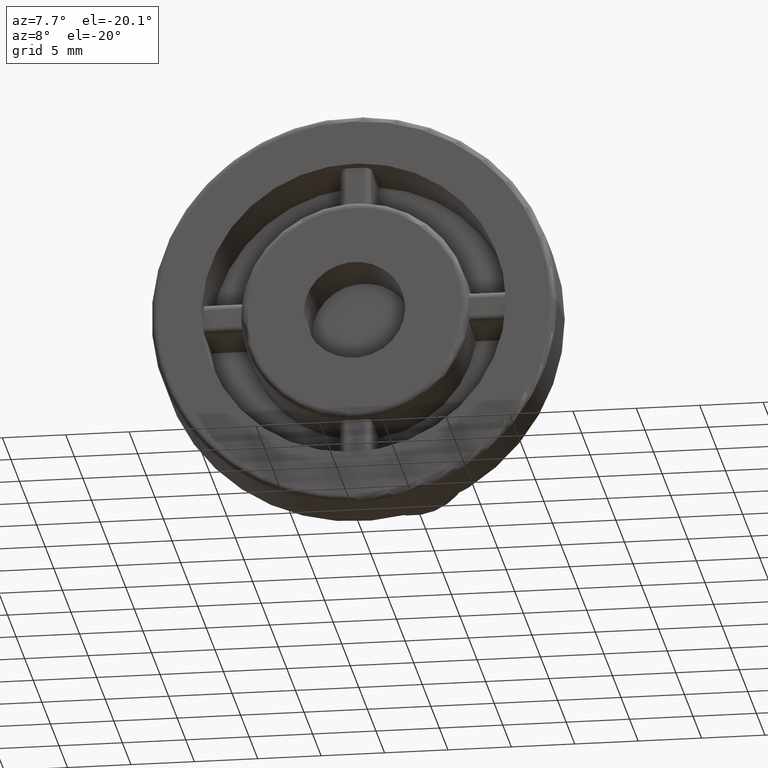
[diagram: clean part render]
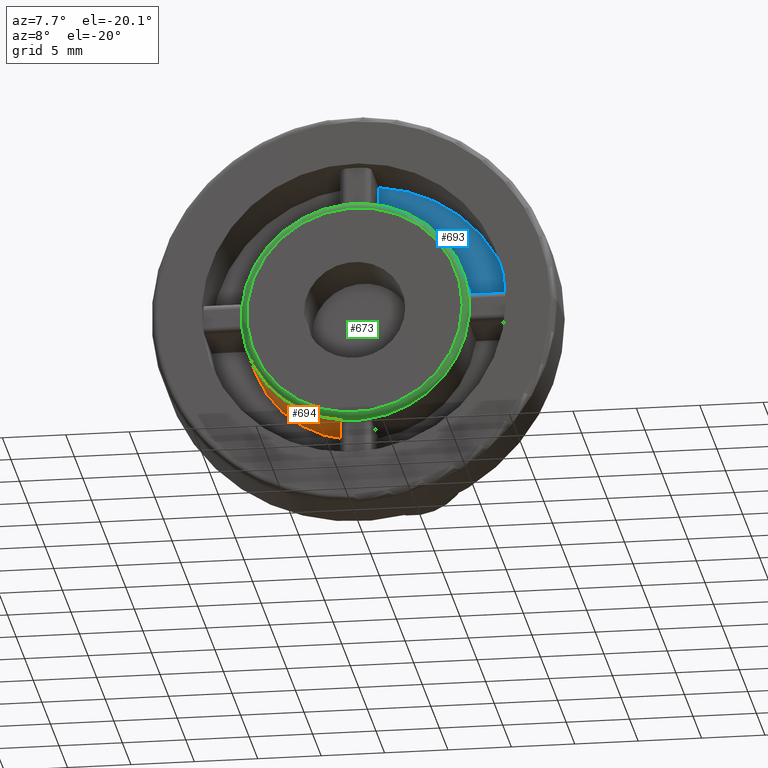
[diagram: same view with three faces highlighted in distinct colors, each labeled with its STEP entity id]
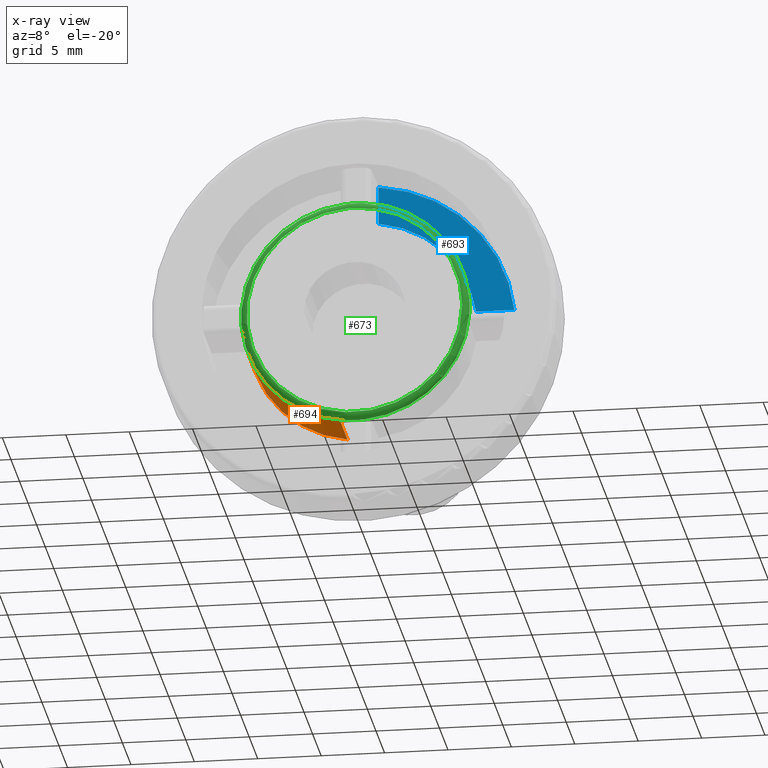
[diagram: x-ray of the same camera — body ghosted, the three highlighted faces saturated]
A machine part, auxiliary view with three faces highlighted in distinct colors.
The next image is the same camera in x-ray (body ghosted, the three faces saturated) — at least one of them is partly hidden behind the body in this view.
Their STEP definitions:

[orange] entity #694 — the highlighted cylindrical surface (partial cylindrical patch) has radius 9 mm, axis along (0, 1, 0).
#38=CIRCLE('',#728,9.);
#60=CIRCLE('',#768,9.);
#132=FACE_OUTER_BOUND('',#189,.T.);
#189=EDGE_LOOP('',(#594,#595,#596,#597,#598,#599));
#212=LINE('',#1059,#252);
#215=LINE('',#1089,#255);
#252=VECTOR('',#806,4.);
#255=VECTOR('',#813,4.);
#285=B_SPLINE_CURVE_WITH_KNOTS('',3,(#1030,#1031,#1032,#1033,#1034,#1035,
#1036,#1037,#1038,#1039),.UNSPECIFIED.,.F.,.F.,(4,2,2,2,4),(0.226359241888503,
0.245295656184821,0.264232070481139,0.283070817447833,0.301909564414528),
 .UNSPECIFIED.);
#287=B_SPLINE_CURVE_WITH_KNOTS('',3,(#1063,#1064,#1065,#1066,#1067,#1068,
#1069,#1070,#1071,#1072),.UNSPECIFIED.,.F.,.F.,(4,2,2,2,4),(0.,0.0188387469666945,
0.037677493933389,0.0566139082297067,0.0755503225260245),.UNSPECIFIED.);
#305=VERTEX_POINT('',#1028);
#306=VERTEX_POINT('',#1029);
#310=VERTEX_POINT('',#1057);
#311=VERTEX_POINT('',#1061);
#312=VERTEX_POINT('',#1062);
#315=VERTEX_POINT('',#1088);
#370=EDGE_CURVE('',#305,#306,#285,.F.);
#376=EDGE_CURVE('',#305,#310,#212,.T.);
#377=EDGE_CURVE('',#311,#312,#287,.T.);
#381=EDGE_CURVE('',#315,#311,#215,.T.);
#425=EDGE_CURVE('',#306,#312,#38,.T.);
#447=EDGE_CURVE('',#310,#315,#60,.T.);
#594=ORIENTED_EDGE('',*,*,#425,.F.);
#595=ORIENTED_EDGE('',*,*,#370,.F.);
#596=ORIENTED_EDGE('',*,*,#376,.T.);
#597=ORIENTED_EDGE('',*,*,#447,.T.);
#598=ORIENTED_EDGE('',*,*,#381,.T.);
#599=ORIENTED_EDGE('',*,*,#377,.T.);
#652=CYLINDRICAL_SURFACE('',#773,9.);
#694=ADVANCED_FACE('',(#132),#652,.T.);
#728=AXIS2_PLACEMENT_3D('',#1265,#875,#876);
#768=AXIS2_PLACEMENT_3D('',#1317,#955,#956);
#773=AXIS2_PLACEMENT_3D('',#1322,#965,#966);
#806=DIRECTION('',(0.,1.,0.));
#813=DIRECTION('',(0.,-1.,0.));
#875=DIRECTION('center_axis',(0.,-1.,0.));
#876=DIRECTION('ref_axis',(-1.,0.,0.));
#955=DIRECTION('center_axis',(6.34413156928661E-17,-1.,0.));
#956=DIRECTION('ref_axis',(-1.,0.,0.));
#965=DIRECTION('center_axis',(0.,1.,0.));
#966=DIRECTION('ref_axis',(-1.,0.,0.));
#1028=CARTESIAN_POINT('',(-8.91624220173499,1.5,-1.225));
#1029=CARTESIAN_POINT('',(-8.97075108338204,1.,-0.725000000000001));
#1030=CARTESIAN_POINT('Ctrl Pts',(-8.97075108338204,1.,-0.725000000000001));
#1031=CARTESIAN_POINT('Ctrl Pts',(-8.96566630546914,1.,-0.787916244097802));
#1032=CARTESIAN_POINT('Ctrl Pts',(-8.95951311142866,1.0125948404136,-0.854964969518353));
#1033=CARTESIAN_POINT('Ctrl Pts',(-8.9468903143191,1.06375041541312,-0.978260699723944));
#1034=CARTESIAN_POINT('Ctrl Pts',(-8.9404578621422,1.1023094965435,-1.03451219112729));
#1035=CARTESIAN_POINT('Ctrl Pts',(-8.92975692421021,1.19112032634881,-1.12313086157964));
#1036=CARTESIAN_POINT('Ctrl Pts',(-8.92477207676993,1.24722912768921,-1.16150914347135));
#1037=CARTESIAN_POINT('Ctrl Pts',(-8.91799504796832,1.37026917173728,-1.21244564387399));
#1038=CARTESIAN_POINT('Ctrl Pts',(-8.91624220173499,1.43720417677769,-1.225));
#1039=CARTESIAN_POINT('Ctrl Pts',(-8.91624220173499,1.5,-1.225));
#1057=CARTESIAN_POINT('',(-8.91624220173499,5.5,-1.225));
#1059=CARTESIAN_POINT('',(-8.91624220173499,0.,-1.225));
#1061=CARTESIAN_POINT('',(-1.225,1.5,-8.91624220173499));
#1062=CARTESIAN_POINT('',(-0.724999999999999,1.,-8.97075108338204));
#1063=CARTESIAN_POINT('Ctrl Pts',(-1.225,1.5,-8.91624220173499));
#1064=CARTESIAN_POINT('Ctrl Pts',(-1.225,1.43720417677769,-8.91624220173499));
#1065=CARTESIAN_POINT('Ctrl Pts',(-1.21244564387399,1.37026917173728,-8.91799504796832));
#1066=CARTESIAN_POINT('Ctrl Pts',(-1.16150914347134,1.24722912768921,-8.92477207676993));
#1067=CARTESIAN_POINT('Ctrl Pts',(-1.12313086157963,1.19112032634881,-8.92975692421021));
#1068=CARTESIAN_POINT('Ctrl Pts',(-1.03451219112729,1.10230949654349,-8.9404578621422));
#1069=CARTESIAN_POINT('Ctrl Pts',(-0.978260699723943,1.06375041541312,-8.9468903143191));
#1070=CARTESIAN_POINT('Ctrl Pts',(-0.854964969518351,1.0125948404136,-8.95951311142866));
#1071=CARTESIAN_POINT('Ctrl Pts',(-0.7879162440978,1.,-8.96566630546914));
#1072=CARTESIAN_POINT('Ctrl Pts',(-0.724999999999999,1.,-8.97075108338204));
#1088=CARTESIAN_POINT('',(-1.225,5.5,-8.91624220173499));
#1089=CARTESIAN_POINT('',(-1.225,0.,-8.91624220173499));
#1265=CARTESIAN_POINT('Origin',(0.,1.,0.));
#1317=CARTESIAN_POINT('Origin',(0.,5.5,0.));
#1322=CARTESIAN_POINT('Origin',(0.,0.,0.));

[blue] entity #693 — the highlighted planar face has unit normal (0, -1, 0).
#41=CIRCLE('',#732,9.);
#62=CIRCLE('',#772,12.);
#90=PLANE('',#771);
#131=FACE_OUTER_BOUND('',#188,.T.);
#188=EDGE_LOOP('',(#590,#591,#592,#593));
#231=LINE('',#1190,#271);
#236=LINE('',#1223,#276);
#271=VECTOR('',#841,3.02106800618036);
#276=VECTOR('',#850,3.02106800618036);
#333=VERTEX_POINT('',#1187);
#334=VERTEX_POINT('',#1189);
#339=VERTEX_POINT('',#1220);
#340=VERTEX_POINT('',#1222);
#403=EDGE_CURVE('',#334,#333,#231,.T.);
#410=EDGE_CURVE('',#340,#339,#236,.T.);
#428=EDGE_CURVE('',#334,#339,#41,.T.);
#449=EDGE_CURVE('',#340,#333,#62,.T.);
#590=ORIENTED_EDGE('',*,*,#410,.T.);
#591=ORIENTED_EDGE('',*,*,#428,.F.);
#592=ORIENTED_EDGE('',*,*,#403,.T.);
#593=ORIENTED_EDGE('',*,*,#449,.F.);
#693=ADVANCED_FACE('',(#131),#90,.T.);
#732=AXIS2_PLACEMENT_3D('',#1270,#883,#884);
#771=AXIS2_PLACEMENT_3D('',#1320,#961,#962);
#772=AXIS2_PLACEMENT_3D('',#1321,#963,#964);
#841=DIRECTION('',(1.,6.34413156928661E-17,1.10130940538356E-16));
#850=DIRECTION('',(7.35660793337468E-17,4.66712886329866E-33,-1.));
#883=DIRECTION('center_axis',(6.34413156928661E-17,-1.,0.));
#884=DIRECTION('ref_axis',(-1.,0.,0.));
#961=DIRECTION('center_axis',(6.34413156928661E-17,-1.,0.));
#962=DIRECTION('ref_axis',(0.,0.,-1.));
#963=DIRECTION('center_axis',(-6.34413156928661E-17,1.,0.));
#964=DIRECTION('ref_axis',(-1.,-6.34413156928661E-17,0.));
#1187=CARTESIAN_POINT('',(11.9373102079154,5.5,1.225));
#1189=CARTESIAN_POINT('',(8.91624220173499,5.5,1.225));
#1190=CARTESIAN_POINT('',(6.63127612158834,5.5,1.225));
#1220=CARTESIAN_POINT('',(1.225,5.5,8.91624220173499));
#1222=CARTESIAN_POINT('',(1.225,5.5,11.9373102079154));
#1223=CARTESIAN_POINT('',(1.225,5.5,3.48098344725556));
#1270=CARTESIAN_POINT('Origin',(0.,5.5,0.));
#1320=CARTESIAN_POINT('Origin',(-7.39255249150933E-16,5.5,-3.08395284618099E-16));
#1321=CARTESIAN_POINT('Origin',(0.,5.5,0.));

[green] entity #673 — the highlighted toroidal blend (fillet) surface has major radius 8.5 mm and minor (blend) radius 0.5 mm.
#16=FACE_BOUND('',#158,.T.);
#32=CIRCLE('',#722,9.);
#33=CIRCLE('',#723,9.);
#34=CIRCLE('',#724,9.);
#35=CIRCLE('',#725,9.);
#36=CIRCLE('',#726,9.);
#37=CIRCLE('',#727,9.);
#38=CIRCLE('',#728,9.);
#39=CIRCLE('',#729,9.);
#40=CIRCLE('',#730,8.5);
#68=TOROIDAL_SURFACE('',#721,8.5,0.5);
#111=FACE_OUTER_BOUND('',#157,.T.);
#157=EDGE_LOOP('',(#519,#520,#521,#522,#523,#524,#525,#526));
#158=EDGE_LOOP('',(#527));
#300=VERTEX_POINT('',#996);
#306=VERTEX_POINT('',#1029);
#312=VERTEX_POINT('',#1062);
#318=VERTEX_POINT('',#1095);
#324=VERTEX_POINT('',#1128);
#330=VERTEX_POINT('',#1161);
#336=VERTEX_POINT('',#1194);
#342=VERTEX_POINT('',#1227);
#347=VERTEX_POINT('',#1267);
#419=EDGE_CURVE('',#318,#324,#32,.T.);
#420=EDGE_CURVE('',#324,#330,#33,.T.);
#421=EDGE_CURVE('',#330,#336,#34,.T.);
#422=EDGE_CURVE('',#336,#342,#35,.T.);
#423=EDGE_CURVE('',#342,#300,#36,.T.);
#424=EDGE_CURVE('',#300,#306,#37,.T.);
#425=EDGE_CURVE('',#306,#312,#38,.T.);
#426=EDGE_CURVE('',#312,#318,#39,.T.);
#427=EDGE_CURVE('',#347,#347,#40,.T.);
#519=ORIENTED_EDGE('',*,*,#419,.T.);
#520=ORIENTED_EDGE('',*,*,#420,.T.);
#521=ORIENTED_EDGE('',*,*,#421,.T.);
#522=ORIENTED_EDGE('',*,*,#422,.T.);
#523=ORIENTED_EDGE('',*,*,#423,.T.);
#524=ORIENTED_EDGE('',*,*,#424,.T.);
#525=ORIENTED_EDGE('',*,*,#425,.T.);
#526=ORIENTED_EDGE('',*,*,#426,.T.);
#527=ORIENTED_EDGE('',*,*,#427,.T.);
#673=ADVANCED_FACE('',(#111,#16),#68,.T.);
#721=AXIS2_PLACEMENT_3D('',#1258,#861,#862);
#722=AXIS2_PLACEMENT_3D('',#1259,#863,#864);
#723=AXIS2_PLACEMENT_3D('',#1260,#865,#866);
#724=AXIS2_PLACEMENT_3D('',#1261,#867,#868);
#725=AXIS2_PLACEMENT_3D('',#1262,#869,#870);
#726=AXIS2_PLACEMENT_3D('',#1263,#871,#872);
#727=AXIS2_PLACEMENT_3D('',#1264,#873,#874);
#728=AXIS2_PLACEMENT_3D('',#1265,#875,#876);
#729=AXIS2_PLACEMENT_3D('',#1266,#877,#878);
#730=AXIS2_PLACEMENT_3D('',#1268,#879,#880);
#861=DIRECTION('center_axis',(6.34413156928661E-17,-1.,0.));
#862=DIRECTION('ref_axis',(0.,0.,-1.));
#863=DIRECTION('center_axis',(0.,-1.,0.));
#864=DIRECTION('ref_axis',(-1.,0.,0.));
#865=DIRECTION('center_axis',(0.,-1.,0.));
#866=DIRECTION('ref_axis',(-1.,0.,0.));
#867=DIRECTION('center_axis',(0.,-1.,0.));
#868=DIRECTION('ref_axis',(-1.,0.,0.));
#869=DIRECTION('center_axis',(0.,-1.,0.));
#870=DIRECTION('ref_axis',(-1.,0.,0.));
#871=DIRECTION('center_axis',(0.,-1.,0.));
#872=DIRECTION('ref_axis',(-1.,0.,0.));
#873=DIRECTION('center_axis',(0.,-1.,0.));
#874=DIRECTION('ref_axis',(-1.,0.,0.));
#875=DIRECTION('center_axis',(0.,-1.,0.));
#876=DIRECTION('ref_axis',(-1.,0.,0.));
#877=DIRECTION('center_axis',(0.,-1.,0.));
#878=DIRECTION('ref_axis',(-1.,0.,0.));
#879=DIRECTION('center_axis',(-6.34413156928661E-17,1.,0.));
#880=DIRECTION('ref_axis',(-1.,-6.34413156928661E-17,0.));
#996=CARTESIAN_POINT('',(-8.97075108338204,1.,0.724999999999999));
#1029=CARTESIAN_POINT('',(-8.97075108338204,1.,-0.725000000000001));
#1062=CARTESIAN_POINT('',(-0.724999999999999,1.,-8.97075108338204));
#1095=CARTESIAN_POINT('',(0.725,1.,-8.97075108338204));
#1128=CARTESIAN_POINT('',(8.97075108338204,1.,-0.725));
#1161=CARTESIAN_POINT('',(8.97075108338204,1.,0.725));
#1194=CARTESIAN_POINT('',(0.724999999999998,1.,8.97075108338204));
#1227=CARTESIAN_POINT('',(-0.725000000000002,1.,8.97075108338204));
#1258=CARTESIAN_POINT('Origin',(0.,1.,0.));
#1259=CARTESIAN_POINT('Origin',(0.,1.,0.));
#1260=CARTESIAN_POINT('Origin',(0.,1.,0.));
#1261=CARTESIAN_POINT('Origin',(0.,1.,0.));
#1262=CARTESIAN_POINT('Origin',(0.,1.,0.));
#1263=CARTESIAN_POINT('Origin',(0.,1.,0.));
#1264=CARTESIAN_POINT('Origin',(0.,1.,0.));
#1265=CARTESIAN_POINT('Origin',(0.,1.,0.));
#1266=CARTESIAN_POINT('Origin',(0.,1.,0.));
#1267=CARTESIAN_POINT('',(8.5,0.500000000000001,-1.04094977927525E-15));
#1268=CARTESIAN_POINT('Origin',(3.17206578464331E-17,0.5,0.));